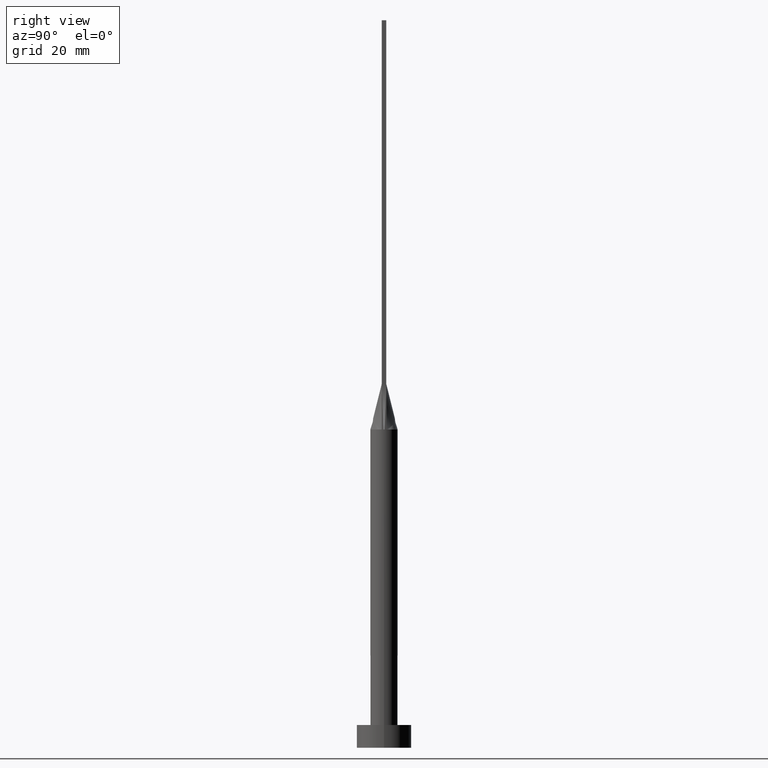
[diagram: clean part render]
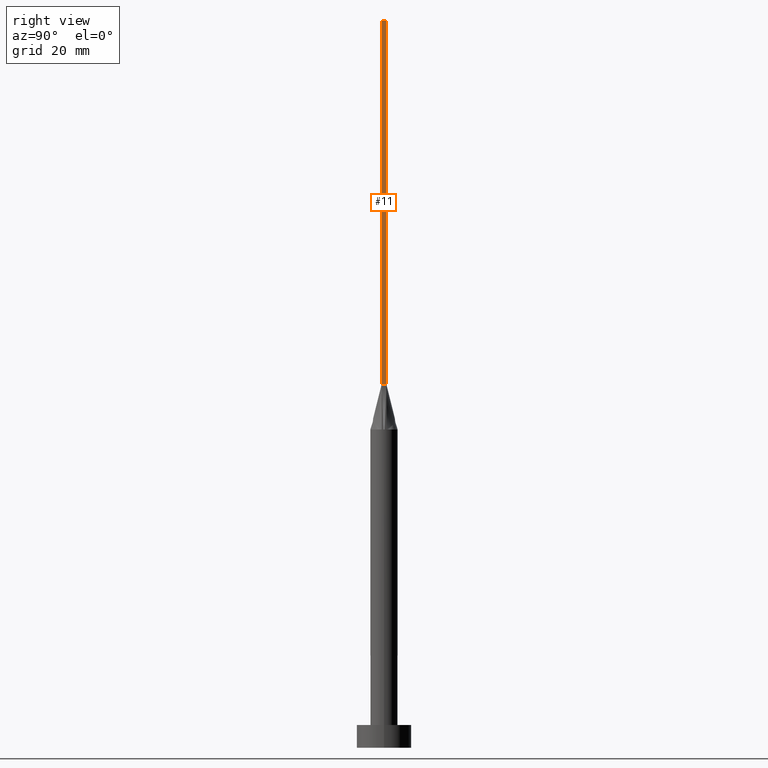
[diagram: same view with one face highlighted and labeled with its STEP entity id]
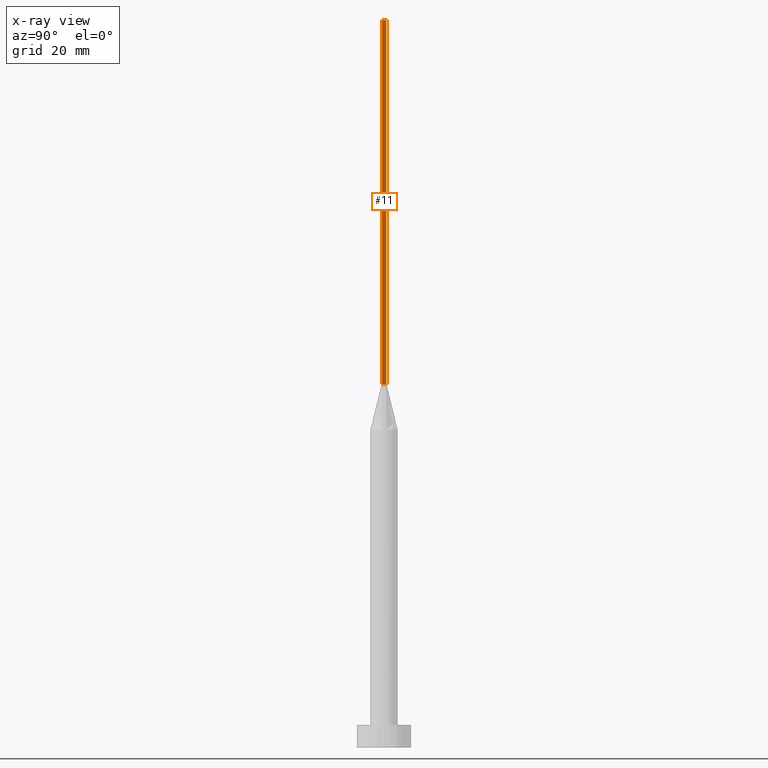
[diagram: x-ray of the same camera — body ghosted, the highlighted face saturated]
A machine part, right view. The second image highlights one B-rep face of the part: STEP entity #11.
The next image is the same camera in x-ray: the body ghosted, the highlighted face saturated — about 0% of this face is hidden behind the body in this view.
In plain terms, the highlighted planar face has unit normal (-1, 0, 0).
Its self-contained STEP definition (entity closure, byte-faithful):
#11 = ADVANCED_FACE ( 'NONE', ( #549 ), #312, .F. ) ;
#31 = CARTESIAN_POINT ( 'NONE',  ( 2.750000000000000000, 0.5000000000000002220, 160.0000000000000000 ) ) ;
#35 = ORIENTED_EDGE ( 'NONE', *, *, #298, .F. ) ;
#69 = LINE ( 'NONE', #31, #106 ) ;
#95 = EDGE_CURVE ( 'NONE', #550, #294, #480, .T. ) ;
#104 = AXIS2_PLACEMENT_3D ( 'NONE', #264, #368, #364 ) ;
#106 = VECTOR ( 'NONE', #196, 1000.000000000000000 ) ;
#177 = EDGE_LOOP ( 'NONE', ( #256, #35, #418, #305 ) ) ;
#196 = DIRECTION ( 'NONE',  ( -0.000000000000000000, -0.000000000000000000, -1.000000000000000000 ) ) ;
#212 = LINE ( 'NONE', #526, #325 ) ;
#215 = CARTESIAN_POINT ( 'NONE',  ( 2.750000000000000000, 0.5000000000000002220, 80.00000000000000000 ) ) ;
#256 = ORIENTED_EDGE ( 'NONE', *, *, #95, .T. ) ;
#264 = CARTESIAN_POINT ( 'NONE',  ( 2.750000000000000000, -0.4999999999999997780, 160.0000000000000000 ) ) ;
#265 = CARTESIAN_POINT ( 'NONE',  ( 2.750000000000000000, -0.4999999999999997780, 160.0000000000000000 ) ) ;
#294 = VERTEX_POINT ( 'NONE', #474 ) ;
#298 = EDGE_CURVE ( 'NONE', #316, #294, #69, .T. ) ;
#304 = VERTEX_POINT ( 'NONE', #462 ) ;
#305 = ORIENTED_EDGE ( 'NONE', *, *, #378, .T. ) ;
#307 = DIRECTION ( 'NONE',  ( -0.000000000000000000, 1.000000000000000000, -0.000000000000000000 ) ) ;
#312 = PLANE ( 'NONE',  #104 ) ;
#316 = VERTEX_POINT ( 'NONE', #481 ) ;
#317 = EDGE_CURVE ( 'NONE', #304, #316, #212, .T. ) ;
#323 = CARTESIAN_POINT ( 'NONE',  ( 2.750000000000000000, -0.4999999999999997780, 80.00000000000000000 ) ) ;
#325 = VECTOR ( 'NONE', #396, 1000.000000000000000 ) ;
#357 = VECTOR ( 'NONE', #547, 1000.000000000000000 ) ;
#364 = DIRECTION ( 'NONE',  ( 0.000000000000000000, 0.000000000000000000, 1.000000000000000000 ) ) ;
#368 = DIRECTION ( 'NONE',  ( -1.000000000000000000, 0.000000000000000000, 0.000000000000000000 ) ) ;
#378 = EDGE_CURVE ( 'NONE', #304, #550, #412, .T. ) ;
#396 = DIRECTION ( 'NONE',  ( 0.000000000000000000, 1.000000000000000000, 0.000000000000000000 ) ) ;
#404 = VECTOR ( 'NONE', #307, 1000.000000000000000 ) ;
#412 = LINE ( 'NONE', #265, #357 ) ;
#418 = ORIENTED_EDGE ( 'NONE', *, *, #317, .F. ) ;
#462 = CARTESIAN_POINT ( 'NONE',  ( 2.750000000000000000, -0.4999999999999997780, 160.0000000000000000 ) ) ;
#474 = CARTESIAN_POINT ( 'NONE',  ( 2.750000000000000000, 0.5000000000000002220, 80.00000000000000000 ) ) ;
#480 = LINE ( 'NONE', #215, #404 ) ;
#481 = CARTESIAN_POINT ( 'NONE',  ( 2.750000000000000000, 0.5000000000000002220, 160.0000000000000000 ) ) ;
#526 = CARTESIAN_POINT ( 'NONE',  ( 2.750000000000000000, -0.4999999999999997780, 160.0000000000000000 ) ) ;
#547 = DIRECTION ( 'NONE',  ( -0.000000000000000000, -0.000000000000000000, -1.000000000000000000 ) ) ;
#549 = FACE_OUTER_BOUND ( 'NONE', #177, .T. ) ;
#550 = VERTEX_POINT ( 'NONE', #323 ) ;